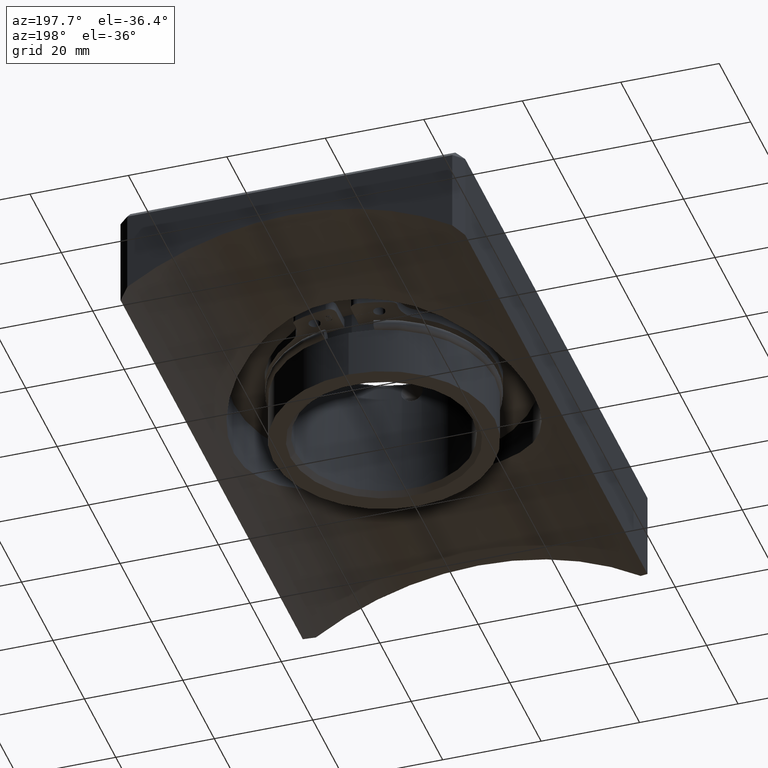
[diagram: clean part render]
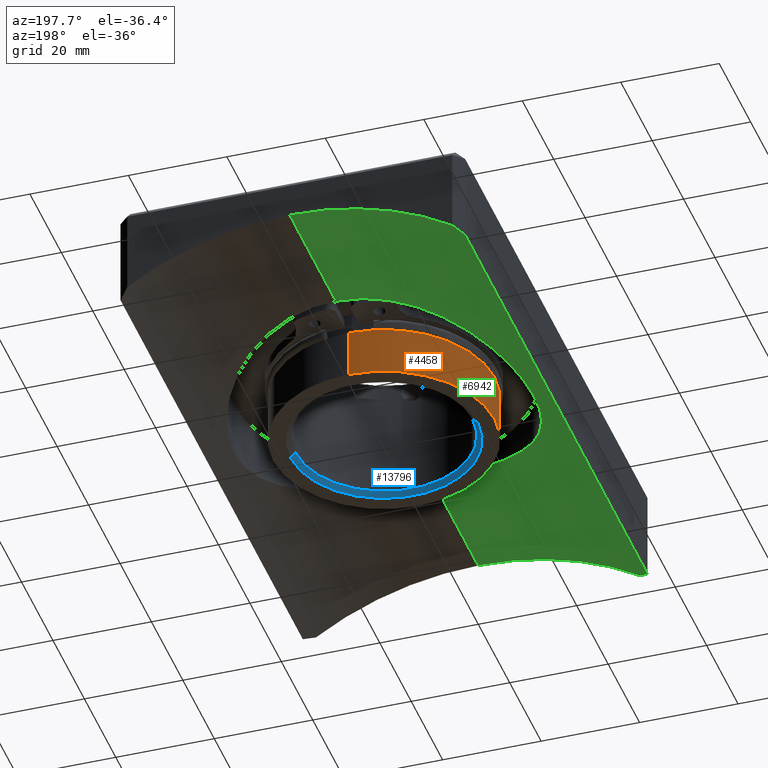
[diagram: same view with three faces highlighted in distinct colors, each labeled with its STEP entity id]
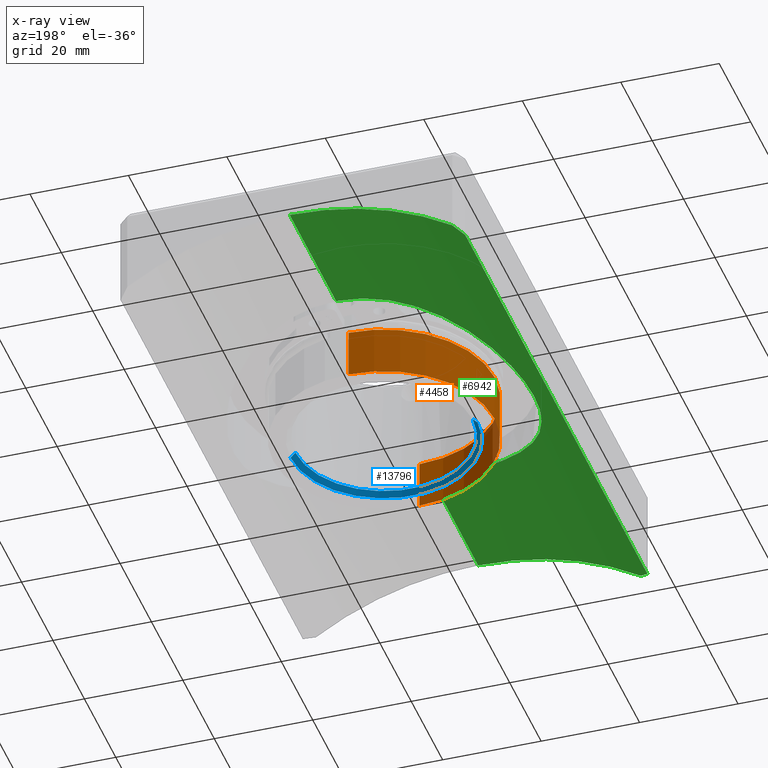
[diagram: x-ray of the same camera — body ghosted, the three highlighted faces saturated]
A machine part, auxiliary view with three faces highlighted in distinct colors.
The next image is the same camera in x-ray (body ghosted, the three faces saturated) — at least one of them is partly hidden behind the body in this view.
Their STEP definitions:

[orange] entity #4458 — the highlighted cylindrical surface (partial cylindrical patch) has radius 22.5 mm, axis along (-0, -0, 1).
#71 = CARTESIAN_POINT ( 'NONE',  ( 2.755455298081545567E-15, 22.50000000000000355, -13.49999999999999645 ) ) ;
#993 = CARTESIAN_POINT ( 'NONE',  ( 0.000000000000000000, -1.836970198721029194E-15, -3.500000000000001332 ) ) ;
#1398 = CIRCLE ( 'NONE', #5411, 22.50000000000000355 ) ;
#2402 = DIRECTION ( 'NONE',  ( -0.000000000000000000, -1.836970198721029441E-16, 1.000000000000000000 ) ) ;
#2716 = LINE ( 'NONE', #5197, #16602 ) ;
#2743 = AXIS2_PLACEMENT_3D ( 'NONE', #993, #14062, #15418 ) ;
#3218 = CIRCLE ( 'NONE', #2743, 22.50000000000000355 ) ;
#3226 = CARTESIAN_POINT ( 'NONE',  ( 0.000000000000000000, -22.50000000000000711, -3.500000000000005773 ) ) ;
#3487 = VERTEX_POINT ( 'NONE', #10657 ) ;
#3998 = EDGE_CURVE ( 'NONE', #9895, #15367, #2716, .T. ) ;
#4458 = ADVANCED_FACE ( 'NONE', ( #10978 ), #5383, .T. ) ;
#4838 = ORIENTED_EDGE ( 'NONE', *, *, #15783, .T. ) ;
#5197 = CARTESIAN_POINT ( 'NONE',  ( 2.755455298081545567E-15, 22.50000000000000355, 13.50000000000000355 ) ) ;
#5383 = CYLINDRICAL_SURFACE ( 'NONE', #5702, 22.50000000000000711 ) ;
#5411 = AXIS2_PLACEMENT_3D ( 'NONE', #15597, #7203, #7267 ) ;
#5702 = AXIS2_PLACEMENT_3D ( 'NONE', #15378, #16827, #18290 ) ;
#7203 = DIRECTION ( 'NONE',  ( -0.000000000000000000, -1.836970198721029441E-16, 1.000000000000000000 ) ) ;
#7267 = DIRECTION ( 'NONE',  ( 0.000000000000000000, -1.000000000000000000, -1.541976423090494894E-16 ) ) ;
#7736 = VECTOR ( 'NONE', #13444, 1000.000000000000000 ) ;
#8035 = EDGE_CURVE ( 'NONE', #9895, #3487, #1398, .T. ) ;
#8176 = LINE ( 'NONE', #12186, #7736 ) ;
#9895 = VERTEX_POINT ( 'NONE', #71 ) ;
#10657 = CARTESIAN_POINT ( 'NONE',  ( 0.000000000000000000, -22.50000000000000355, -13.50000000000000355 ) ) ;
#10978 = FACE_OUTER_BOUND ( 'NONE', #14971, .T. ) ;
#11284 = ORIENTED_EDGE ( 'NONE', *, *, #18023, .F. ) ;
#12186 = CARTESIAN_POINT ( 'NONE',  ( 0.000000000000000000, -22.50000000000001066, 13.49999999999999645 ) ) ;
#13444 = DIRECTION ( 'NONE',  ( -0.000000000000000000, -1.836970198721029441E-16, 1.000000000000000000 ) ) ;
#14062 = DIRECTION ( 'NONE',  ( -0.000000000000000000, -1.836970198721029441E-16, 1.000000000000000000 ) ) ;
#14706 = CARTESIAN_POINT ( 'NONE',  ( 2.755455298081545567E-15, 22.50000000000000000, -3.499999999999996891 ) ) ;
#14971 = EDGE_LOOP ( 'NONE', ( #15330, #17130, #4838, #11284 ) ) ;
#15330 = ORIENTED_EDGE ( 'NONE', *, *, #3998, .F. ) ;
#15367 = VERTEX_POINT ( 'NONE', #14706 ) ;
#15378 = CARTESIAN_POINT ( 'NONE',  ( 0.000000000000000000, -4.959819536546779811E-15, 13.50000000000000000 ) ) ;
#15418 = DIRECTION ( 'NONE',  ( 0.000000000000000000, -1.000000000000000000, -1.927470528863118802E-16 ) ) ;
#15597 = CARTESIAN_POINT ( 'NONE',  ( 0.000000000000000000, 0.000000000000000000, -13.50000000000000000 ) ) ;
#15628 = VERTEX_POINT ( 'NONE', #3226 ) ;
#15783 = EDGE_CURVE ( 'NONE', #3487, #15628, #8176, .T. ) ;
#16602 = VECTOR ( 'NONE', #2402, 1000.000000000000000 ) ;
#16827 = DIRECTION ( 'NONE',  ( -0.000000000000000000, -1.836970198721029441E-16, 1.000000000000000000 ) ) ;
#17130 = ORIENTED_EDGE ( 'NONE', *, *, #8035, .T. ) ;
#18023 = EDGE_CURVE ( 'NONE', #15367, #15628, #3218, .T. ) ;
#18290 = DIRECTION ( 'NONE',  ( 0.000000000000000000, -1.000000000000000000, -1.541976423090494647E-16 ) ) ;

[blue] entity #13796 — the highlighted conical surface has half-angle 45 deg.
#426 = EDGE_LOOP ( 'NONE', ( #17098, #18235, #2844, #6382 ) ) ;
#1133 = VERTEX_POINT ( 'NONE', #1767 ) ;
#1586 = VERTEX_POINT ( 'NONE', #11554 ) ;
#1751 = FACE_OUTER_BOUND ( 'NONE', #426, .T. ) ;
#1767 = CARTESIAN_POINT ( 'NONE',  ( 18.99999999999998224, 2.326828918379968998E-15, -13.50000000000000000 ) ) ;
#2357 = CARTESIAN_POINT ( 'NONE',  ( 0.000000000000000000, 0.000000000000000000, -13.50000000000000000 ) ) ;
#2794 = VERTEX_POINT ( 'NONE', #17077 ) ;
#2844 = ORIENTED_EDGE ( 'NONE', *, *, #5918, .F. ) ;
#3770 = DIRECTION ( 'NONE',  ( -1.000000000000000000, 0.000000000000000000, 0.000000000000000000 ) ) ;
#4283 = VERTEX_POINT ( 'NONE', #9184 ) ;
#4449 = VECTOR ( 'NONE', #16445, 1000.000000000000114 ) ;
#4781 = EDGE_CURVE ( 'NONE', #2794, #4283, #17030, .T. ) ;
#5207 = DIRECTION ( 'NONE',  ( -0.000000000000000000, -0.000000000000000000, -1.000000000000000000 ) ) ;
#5784 = DIRECTION ( 'NONE',  ( 0.7071067811865474617, 8.659560562354932858E-17, -0.7071067811865474617 ) ) ;
#5918 = EDGE_CURVE ( 'NONE', #4283, #1133, #12646, .T. ) ;
#6123 = VECTOR ( 'NONE', #5784, 1000.000000000000114 ) ;
#6241 = AXIS2_PLACEMENT_3D ( 'NONE', #10519, #8895, #10322 ) ;
#6382 = ORIENTED_EDGE ( 'NONE', *, *, #4781, .F. ) ;
#6408 = CARTESIAN_POINT ( 'NONE',  ( -18.99999999999998224, 0.000000000000000000, -13.50000000000000000 ) ) ;
#6560 = DIRECTION ( 'NONE',  ( 1.000000000000000000, 0.000000000000000000, 0.000000000000000000 ) ) ;
#7333 = AXIS2_PLACEMENT_3D ( 'NONE', #9432, #17865, #6560 ) ;
#7551 = EDGE_CURVE ( 'NONE', #1586, #2794, #15484, .T. ) ;
#8895 = DIRECTION ( 'NONE',  ( -0.000000000000000000, -1.836970198721029441E-16, 1.000000000000000000 ) ) ;
#9184 = CARTESIAN_POINT ( 'NONE',  ( -18.99999999999998224, 0.000000000000000000, -13.50000000000000000 ) ) ;
#9330 = CONICAL_SURFACE ( 'NONE', #12426, 18.99999999999998224, 0.7853981633974482790 ) ;
#9432 = CARTESIAN_POINT ( 'NONE',  ( 0.000000000000000000, 0.000000000000000000, -12.50000000000001599 ) ) ;
#10322 = DIRECTION ( 'NONE',  ( 0.000000000000000000, -1.000000000000000000, -1.826024711554535392E-16 ) ) ;
#10519 = CARTESIAN_POINT ( 'NONE',  ( 0.000000000000000000, 0.000000000000000000, -13.50000000000000000 ) ) ;
#11554 = CARTESIAN_POINT ( 'NONE',  ( 18.00000000000000000, 0.000000000000000000, -12.50000000000001599 ) ) ;
#12426 = AXIS2_PLACEMENT_3D ( 'NONE', #2357, #5207, #3770 ) ;
#12646 = CIRCLE ( 'NONE', #6241, 18.99999999999998224 ) ;
#13192 = CARTESIAN_POINT ( 'NONE',  ( 18.99999999999998224, 2.326828918379968998E-15, -13.50000000000000000 ) ) ;
#13796 = ADVANCED_FACE ( 'NONE', ( #1751 ), #9330, .F. ) ;
#15484 = CIRCLE ( 'NONE', #7333, 18.00000000000000000 ) ;
#16445 = DIRECTION ( 'NONE',  ( -0.7071067811865474617, 0.000000000000000000, -0.7071067811865474617 ) ) ;
#17030 = LINE ( 'NONE', #6408, #4449 ) ;
#17077 = CARTESIAN_POINT ( 'NONE',  ( -18.00000000000000000, 2.204364238465235428E-15, -12.50000000000001599 ) ) ;
#17098 = ORIENTED_EDGE ( 'NONE', *, *, #7551, .F. ) ;
#17782 = EDGE_CURVE ( 'NONE', #1586, #1133, #18034, .T. ) ;
#17865 = DIRECTION ( 'NONE',  ( -0.000000000000000000, -0.000000000000000000, -1.000000000000000000 ) ) ;
#18034 = LINE ( 'NONE', #13192, #6123 ) ;
#18235 = ORIENTED_EDGE ( 'NONE', *, *, #17782, .T. ) ;

[green] entity #6942 — the highlighted cylindrical surface (partial cylindrical patch) has radius 60 mm, axis along (-0, 1, -0).
#32 = EDGE_CURVE ( 'NONE', #18130, #18276, #3886, .T. ) ;
#419 = CARTESIAN_POINT ( 'NONE',  ( -30.30062974888733152, -4.030276830269930777, -9.711145330395005715 ) ) ;
#460 = ORIENTED_EDGE ( 'NONE', *, *, #3845, .T. ) ;
#496 = CARTESIAN_POINT ( 'NONE',  ( -11.36673962844906249, -28.30722654674890748, -2.584638300133795585 ) ) ;
#555 = CARTESIAN_POINT ( 'NONE',  ( -4.073965611915667751, -30.24384858584808100, -1.629868804031556984 ) ) ;
#568 = VECTOR ( 'NONE', #15884, 1000.000000000000000 ) ;
#589 =( BOUNDED_CURVE ( )  B_SPLINE_CURVE ( 3, ( #11523, #15785, #1527, #8511 ),
 .UNSPECIFIED., .F., .T. ) 
 B_SPLINE_CURVE_WITH_KNOTS ( ( 4, 4 ),
 ( 5.294753218253432259, 5.335215565796692871 ),
 .UNSPECIFIED. ) 
 CURVE ( )  GEOMETRIC_REPRESENTATION_ITEM ( )  RATIONAL_B_SPLINE_CURVE ( ( 1.000000000000000000, 0.9998635711893997247, 0.9998635711893997247, 1.000000000000000000 ) ) 
 REPRESENTATION_ITEM ( '' )  );
#677 = DIRECTION ( 'NONE',  ( 0.000000000000000000, 0.000000000000000000, 1.000000000000000000 ) ) ;
#908 = DIRECTION ( 'NONE',  ( 0.000000000000000000, 1.000000000000000000, 0.000000000000000000 ) ) ;
#934 = ORIENTED_EDGE ( 'NONE', *, *, #11498, .T. ) ;
#1099 = CARTESIAN_POINT ( 'NONE',  ( 0.000000000000000000, -60.00000000000002132, -1.500000000000001332 ) ) ;
#1103 = CARTESIAN_POINT ( 'NONE',  ( -15.34665842136341318, 26.37648915101759073, -3.488847162227803889 ) ) ;
#1527 = CARTESIAN_POINT ( 'NONE',  ( -34.34265819035162792, -58.65734180964835787, -12.29393534932138721 ) ) ;
#1542 = VECTOR ( 'NONE', #9947, 1000.000000000000000 ) ;
#1860 = ORIENTED_EDGE ( 'NONE', *, *, #13754, .F. ) ;
#1979 = CIRCLE ( 'NONE', #2714, 60.00000000000000000 ) ;
#1985 = CARTESIAN_POINT ( 'NONE',  ( -25.88928388436730899, -16.15482032044848282, -7.369455946991560147 ) ) ;
#2053 = CARTESIAN_POINT ( 'NONE',  ( -7.049494110619834331, -29.69124677742055241, -1.907298433288142636 ) ) ;
#2291 = ORIENTED_EDGE ( 'NONE', *, *, #7155, .F. ) ;
#2477 = CARTESIAN_POINT ( 'NONE',  ( -18.66691161687592881, 24.20142538177874414, -4.451988184497828627 ) ) ;
#2525 = DIRECTION ( 'NONE',  ( 0.000000000000000000, 0.000000000000000000, 1.000000000000000000 ) ) ;
#2533 = CYLINDRICAL_SURFACE ( 'NONE', #15838, 60.00000000000000000 ) ;
#2707 = CARTESIAN_POINT ( 'NONE',  ( -30.24527953688071236, 4.064822073204671149, -9.680726280119914762 ) ) ;
#2714 = AXIS2_PLACEMENT_3D ( 'NONE', #16858, #4013, #12420 ) ;
#3012 = CARTESIAN_POINT ( 'NONE',  ( -1.010859536334454800, 30.50000000000000355, -1.500000000000000444 ) ) ;
#3213 = CARTESIAN_POINT ( 'NONE',  ( -30.50000000000000355, -2.023522964542597169, -9.830376428698459179 ) ) ;
#3353 = CARTESIAN_POINT ( 'NONE',  ( -17.87047977199239668, -24.72127513752804617, -4.221561937850865753 ) ) ;
#3408 = CARTESIAN_POINT ( 'NONE',  ( -29.30074275304394149, -8.483371690190210757, -9.140713727070437500 ) ) ;
#3510 = CARTESIAN_POINT ( 'NONE',  ( -32.99999999999998579, 60.00000000000000711, -11.39012073452979479 ) ) ;
#3582 = CARTESIAN_POINT ( 'NONE',  ( -35.00000000000000711, -60.00000000000002132, -12.76602827595518796 ) ) ;
#3645 = DIRECTION ( 'NONE',  ( 0.000000000000000000, -1.000000000000000000, 0.000000000000000000 ) ) ;
#3845 = EDGE_CURVE ( 'NONE', #10153, #15347, #589, .T. ) ;
#3848 = ORIENTED_EDGE ( 'NONE', *, *, #17413, .F. ) ;
#3886 =( BOUNDED_CURVE ( )  B_SPLINE_CURVE ( 3, ( #4007, #14223, #5625, #11136 ),
 .UNSPECIFIED., .F., .T. ) 
 B_SPLINE_CURVE_WITH_KNOTS ( ( 4, 4 ),
 ( 4.089562394972686477, 4.130024742515946201 ),
 .UNSPECIFIED. ) 
 CURVE ( )  GEOMETRIC_REPRESENTATION_ITEM ( )  RATIONAL_B_SPLINE_CURVE ( ( 1.000000000000000000, 0.9998635711893997247, 0.9998635711893997247, 1.000000000000000000 ) ) 
 REPRESENTATION_ITEM ( '' )  );
#4007 = CARTESIAN_POINT ( 'NONE',  ( -35.00000000000000711, 58.00000000000000000, -12.76602827595518796 ) ) ;
#4013 = DIRECTION ( 'NONE',  ( 0.000000000000000000, 1.000000000000000000, 0.000000000000000000 ) ) ;
#4129 = CARTESIAN_POINT ( 'NONE',  ( -29.49168499280103717, 8.034739491677790113, -9.246254330281541201 ) ) ;
#4782 = CARTESIAN_POINT ( 'NONE',  ( -15.41939868249809642, -26.38935238170644482, -3.489981234160128398 ) ) ;
#4872 = CARTESIAN_POINT ( 'NONE',  ( 0.000000000000000000, 60.00000000000000711, -1.500000000000001332 ) ) ;
#4908 = CARTESIAN_POINT ( 'NONE',  ( -17.46730784069066900, -25.00774415510178628, -4.097250369799541048 ) ) ;
#4982 = FACE_OUTER_BOUND ( 'NONE', #6718, .T. ) ;
#5310 = VECTOR ( 'NONE', #3645, 1000.000000000000000 ) ;
#5517 = CARTESIAN_POINT ( 'NONE',  ( -24.75973588232722733, 17.83736588750040752, -6.843604901312802191 ) ) ;
#5625 = CARTESIAN_POINT ( 'NONE',  ( -33.67590055873435517, 59.32409944126565193, -11.83523692249880810 ) ) ;
#5881 = CARTESIAN_POINT ( 'NONE',  ( -3.531645488893413454, 30.29907358181064581, -1.601903357490089608 ) ) ;
#6026 = CIRCLE ( 'NONE', #17959, 60.00000000000000000 ) ;
#6223 = CARTESIAN_POINT ( 'NONE',  ( -24.23331580252910200, -18.62603993714819239, -6.597999277848851207 ) ) ;
#6287 = DIRECTION ( 'NONE',  ( -0.000000000000000000, 1.000000000000000000, -0.000000000000000000 ) ) ;
#6289 = CARTESIAN_POINT ( 'NONE',  ( -29.68637756954189300, -7.016108852820721609, -9.358466342857083120 ) ) ;
#6348 = CARTESIAN_POINT ( 'NONE',  ( -22.99090064306584225, -20.13685238251832743, -6.059881910621514933 ) ) ;
#6718 = EDGE_LOOP ( 'NONE', ( #3848, #18483, #460, #1860, #15157, #934, #12656, #2291, #12204 ) ) ;
#6773 = CARTESIAN_POINT ( 'NONE',  ( -30.50000000000000355, 1.010873589109900772, -9.830376428698459179 ) ) ;
#6832 = CARTESIAN_POINT ( 'NONE',  ( -9.954308788074106573, 28.89812405186055955, -2.302045264114223944 ) ) ;
#6895 = CARTESIAN_POINT ( 'NONE',  ( -26.40541958926560540, 15.39052914566261165, -7.609203003662769582 ) ) ;
#6942 = ADVANCED_FACE ( 'NONE', ( #4982 ), #2533, .F. ) ;
#7018 = CARTESIAN_POINT ( 'NONE',  ( -22.25237144233882702, 20.88157249687080963, -5.774042064979493460 ) ) ;
#7155 = EDGE_CURVE ( 'NONE', #7739, #15031, #8361, .T. ) ;
#7202 = CARTESIAN_POINT ( 'NONE',  ( -5.545388577747097258, 29.99597624740846413, -1.754699422175784340 ) ) ;
#7266 = CARTESIAN_POINT ( 'NONE',  ( -5.041156375984322757, 30.08480540584141494, -1.710023889364120198 ) ) ;
#7614 = CARTESIAN_POINT ( 'NONE',  ( -35.00000000000000711, -57.99999999999997158, -12.76602827595518796 ) ) ;
#7661 = CARTESIAN_POINT ( 'NONE',  ( -28.52024851401188599, -10.85462008497900577, -8.710020783884457884 ) ) ;
#7706 = LINE ( 'NONE', #17148, #568 ) ;
#7716 = CARTESIAN_POINT ( 'NONE',  ( -9.468064357938946074, -28.99757465889279828, -2.249745698612136913 ) ) ;
#7739 = VERTEX_POINT ( 'NONE', #12386 ) ;
#8038 = B_SPLINE_CURVE_WITH_KNOTS ( 'NONE', 3,
 ( #16316, #14752, #13499, #555, #9096, #2053, #16194, #7716, #10464, #10592, #496, #11928, #4782, #4908, #3353, #13368, #10532, #14939, #14818, #6348, #6223, #1985, #14874, #11990, #16251, #7661, #17705, #3408, #13436, #6289, #11786, #419, #3213, #16117 ),
 .UNSPECIFIED., .F., .F.,
 ( 4, 2, 2, 2, 2, 2, 2, 2, 2, 2, 2, 2, 2, 2, 2, 2, 4 ),
 ( 0.04855553187109261370, 0.05158771510564748308, 0.05461989834020235246, 0.05765208157475722878, 0.05916817319203467040, 0.06068426480931210509, 0.06674863127842187160, 0.06826472289569929242, 0.06978081451297674098, 0.07281299774753159648, 0.07887736421664130748, 0.08190954745119616298, 0.08494173068575101848, 0.08797391392030587398, 0.08949000553758332255, 0.09100609715486074336, 0.09707046362397045436 ),
 .UNSPECIFIED. ) ;
#8199 = CARTESIAN_POINT ( 'NONE',  ( -13.59572722458577587, 27.32023619719293706, -3.053700035810420044 ) ) ;
#8323 = CARTESIAN_POINT ( 'NONE',  ( -12.70042121354756226, 27.74768927838377408, -2.852145579837715328 ) ) ;
#8361 = B_SPLINE_CURVE_WITH_KNOTS ( 'NONE', 3,
 ( #11268, #6773, #15530, #2707, #18490, #4129, #9815, #16798, #6895, #5517, #16977, #15408, #7018, #12541, #2477, #13993, #1103, #8199, #8323, #6832, #18548, #7202, #7266, #12904, #5881, #17227, #3012, #11331 ),
 .UNSPECIFIED., .F., .F.,
 ( 4, 2, 2, 2, 2, 2, 2, 2, 2, 2, 2, 2, 2, 4 ),
 ( 0.09707046362397045436, 0.1000999859005770043, 0.1031295081771835404, 0.1091885527303966402, 0.1152475972836097401, 0.1182771195602162762, 0.1213066418368228261, 0.1273656863900359260, 0.1303952086666424481, 0.1334247309432489981, 0.1394837754964620702, 0.1409985366347653313, 0.1425132977730686201, 0.1455428200496751423 ),
 .UNSPECIFIED. ) ;
#8511 = CARTESIAN_POINT ( 'NONE',  ( -35.00000000000000711, -57.99999999999997158, -12.76602827595518796 ) ) ;
#8819 = VERTEX_POINT ( 'NONE', #10516 ) ;
#9096 = CARTESIAN_POINT ( 'NONE',  ( -5.074258974353221596, -30.09181613453308657, -1.706711554756904281 ) ) ;
#9628 = CARTESIAN_POINT ( 'NONE',  ( 0.000000000000000000, 60.00000000000000711, -61.50000000000000000 ) ) ;
#9815 = CARTESIAN_POINT ( 'NONE',  ( -28.90128094492567357, 9.950020814641296951, -8.912066916777526160 ) ) ;
#9947 = DIRECTION ( 'NONE',  ( -0.000000000000000000, 1.000000000000000000, -0.000000000000000000 ) ) ;
#10153 = VERTEX_POINT ( 'NONE', #16147 ) ;
#10464 = CARTESIAN_POINT ( 'NONE',  ( -9.946139662289356309, -28.83712322077612100, -2.328158053821693052 ) ) ;
#10516 = CARTESIAN_POINT ( 'NONE',  ( 2.403560570595270345E-27, -30.50000000000000000, -1.500000000000001776 ) ) ;
#10532 = CARTESIAN_POINT ( 'NONE',  ( -19.05466320950618098, -23.82044526133431361, -4.604643497645524164 ) ) ;
#10592 = CARTESIAN_POINT ( 'NONE',  ( -10.89599776576913115, -28.49179886424064989, -2.495679766871086613 ) ) ;
#11136 = CARTESIAN_POINT ( 'NONE',  ( -32.99999999999998579, 60.00000000000000711, -11.39012073452979479 ) ) ;
#11268 = CARTESIAN_POINT ( 'NONE',  ( -30.50000000000000000, 3.735221585868781676E-15, -9.830376428698466285 ) ) ;
#11331 = CARTESIAN_POINT ( 'NONE',  ( -1.945873728577807168E-19, 30.50000000000000000, -1.499999999999999556 ) ) ;
#11349 = LINE ( 'NONE', #3582, #5310 ) ;
#11498 = EDGE_CURVE ( 'NONE', #18276, #17577, #6026, .T. ) ;
#11523 = CARTESIAN_POINT ( 'NONE',  ( -32.99999999999999289, -60.00000000000002132, -11.39012073452980189 ) ) ;
#11786 = CARTESIAN_POINT ( 'NONE',  ( -29.79972561791659302, -6.517970083056678021, -9.423232578769590972 ) ) ;
#11928 = CARTESIAN_POINT ( 'NONE',  ( -13.67953545491755030, -27.33404145998882839, -3.049746503116713470 ) ) ;
#11988 = CARTESIAN_POINT ( 'NONE',  ( 0.000000000000000000, -60.00000000000002132, -61.50000000000000000 ) ) ;
#11990 = CARTESIAN_POINT ( 'NONE',  ( -27.33337540818960676, -13.56866816655102426, -8.085029799710142129 ) ) ;
#12204 = ORIENTED_EDGE ( 'NONE', *, *, #12539, .F. ) ;
#12386 = CARTESIAN_POINT ( 'NONE',  ( -30.50000000000000000, 3.735221585868781676E-15, -9.830376428698466285 ) ) ;
#12420 = DIRECTION ( 'NONE',  ( 0.000000000000000000, 0.000000000000000000, 1.000000000000000000 ) ) ;
#12539 = EDGE_CURVE ( 'NONE', #8819, #7739, #8038, .T. ) ;
#12541 = CARTESIAN_POINT ( 'NONE',  ( -20.17531466998757850, 22.95733209601098679, -4.974268086994635851 ) ) ;
#12656 = ORIENTED_EDGE ( 'NONE', *, *, #12803, .F. ) ;
#12803 = EDGE_CURVE ( 'NONE', #15031, #17577, #15643, .T. ) ;
#12904 = CARTESIAN_POINT ( 'NONE',  ( -4.035084822218244938, 30.23618468643118717, -1.633710726360861898 ) ) ;
#13368 = CARTESIAN_POINT ( 'NONE',  ( -18.66403048069473058, -24.12777357988609239, -4.475202934720213577 ) ) ;
#13436 = CARTESIAN_POINT ( 'NONE',  ( -29.43691417949124656, -7.998429859997297164, -9.217224357254758971 ) ) ;
#13499 = CARTESIAN_POINT ( 'NONE',  ( -2.047021269095089302, -30.44827215154660749, -1.526343206759373849 ) ) ;
#13754 = EDGE_CURVE ( 'NONE', #18130, #15347, #11349, .T. ) ;
#13943 = EDGE_CURVE ( 'NONE', #10153, #15642, #1979, .T. ) ;
#13993 = CARTESIAN_POINT ( 'NONE',  ( -16.20518575800270611, 25.85768936900861803, -3.723497294296972626 ) ) ;
#14223 = CARTESIAN_POINT ( 'NONE',  ( -34.34265819035164924, 58.65734180964834366, -12.29393534932139787 ) ) ;
#14300 = CARTESIAN_POINT ( 'NONE',  ( -35.00000000000000711, 58.00000000000000000, -12.76602827595518796 ) ) ;
#14752 = CARTESIAN_POINT ( 'NONE',  ( -1.016854905275819121, -30.50000000000000355, -1.500000000000002220 ) ) ;
#14818 = CARTESIAN_POINT ( 'NONE',  ( -20.92093997386453808, -22.21531801873701895, -5.260678150018152976 ) ) ;
#14874 = CARTESIAN_POINT ( 'NONE',  ( -26.39994169655693668, -15.30572590364121410, -7.617576788703420476 ) ) ;
#14939 = CARTESIAN_POINT ( 'NONE',  ( -20.19626773575568990, -22.87653775048581295, -4.995505525873900510 ) ) ;
#14974 = CARTESIAN_POINT ( 'NONE',  ( -1.945873728577807168E-19, 30.50000000000000000, -1.499999999999999556 ) ) ;
#15031 = VERTEX_POINT ( 'NONE', #14974 ) ;
#15157 = ORIENTED_EDGE ( 'NONE', *, *, #32, .T. ) ;
#15347 = VERTEX_POINT ( 'NONE', #7614 ) ;
#15408 = CARTESIAN_POINT ( 'NONE',  ( -22.91427440936686821, 20.15351308354553339, -6.043681447554544839 ) ) ;
#15530 = CARTESIAN_POINT ( 'NONE',  ( -30.44988061524360745, 2.025952434850979422, -9.800688267276498777 ) ) ;
#15642 = VERTEX_POINT ( 'NONE', #17711 ) ;
#15643 = LINE ( 'NONE', #1099, #1542 ) ;
#15785 = CARTESIAN_POINT ( 'NONE',  ( -33.67590055873431965, -59.32409944126567325, -11.83523692249879566 ) ) ;
#15838 = AXIS2_PLACEMENT_3D ( 'NONE', #11988, #6287, #677 ) ;
#15884 = DIRECTION ( 'NONE',  ( -0.000000000000000000, 1.000000000000000000, -0.000000000000000000 ) ) ;
#16117 = CARTESIAN_POINT ( 'NONE',  ( -30.50000000000000000, 3.735221585868781676E-15, -9.830376428698466285 ) ) ;
#16147 = CARTESIAN_POINT ( 'NONE',  ( -32.99999999999999289, -60.00000000000002132, -11.39012073452980189 ) ) ;
#16194 = CARTESIAN_POINT ( 'NONE',  ( -8.024433682874752449, -29.44270332706706839, -2.031050337760590629 ) ) ;
#16251 = CARTESIAN_POINT ( 'NONE',  ( -27.75744903518334183, -12.67877657936387692, -8.304976698960766512 ) ) ;
#16316 = CARTESIAN_POINT ( 'NONE',  ( 2.403560570595270345E-27, -30.50000000000000000, -1.500000000000001776 ) ) ;
#16798 = CARTESIAN_POINT ( 'NONE',  ( -27.34625190180096155, 13.65538214011479212, -8.086918707621295610 ) ) ;
#16858 = CARTESIAN_POINT ( 'NONE',  ( 0.000000000000000000, -60.00000000000002132, -61.50000000000000000 ) ) ;
#16977 = CARTESIAN_POINT ( 'NONE',  ( -24.17173336451293153, 18.62673797183227720, -6.580107927518977107 ) ) ;
#17148 = CARTESIAN_POINT ( 'NONE',  ( 0.000000000000000000, -60.00000000000002132, -1.500000000000001332 ) ) ;
#17227 = CARTESIAN_POINT ( 'NONE',  ( -2.020130233301779654, 30.44987016296274618, -1.525529774251339621 ) ) ;
#17413 = EDGE_CURVE ( 'NONE', #15642, #8819, #7706, .T. ) ;
#17577 = VERTEX_POINT ( 'NONE', #4872 ) ;
#17705 = CARTESIAN_POINT ( 'NONE',  ( -28.85898334173813495, -9.920361129373910458, -8.895127411580276089 ) ) ;
#17711 = CARTESIAN_POINT ( 'NONE',  ( 0.000000000000000000, -60.00000000000002132, -1.500000000000001332 ) ) ;
#17959 = AXIS2_PLACEMENT_3D ( 'NONE', #9628, #908, #2525 ) ;
#18130 = VERTEX_POINT ( 'NONE', #14300 ) ;
#18276 = VERTEX_POINT ( 'NONE', #3510 ) ;
#18483 = ORIENTED_EDGE ( 'NONE', *, *, #13943, .F. ) ;
#18490 = CARTESIAN_POINT ( 'NONE',  ( -30.09252397814586999, 5.070170729684410738, -9.591490527252931386 ) ) ;
#18548 = CARTESIAN_POINT ( 'NONE',  ( -8.043962100237800783, 29.49073552732706816, -2.007722488256806770 ) ) ;